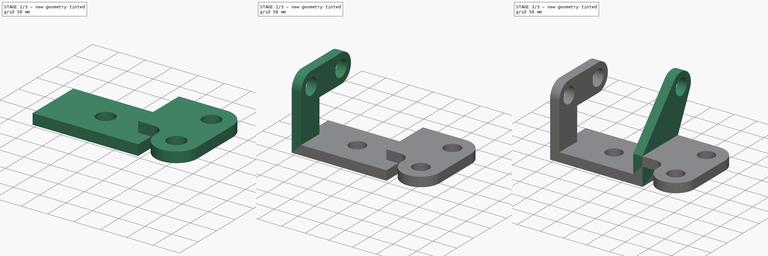
[diagram: build sequence overview — one tinted view per stage of 3, left to right]
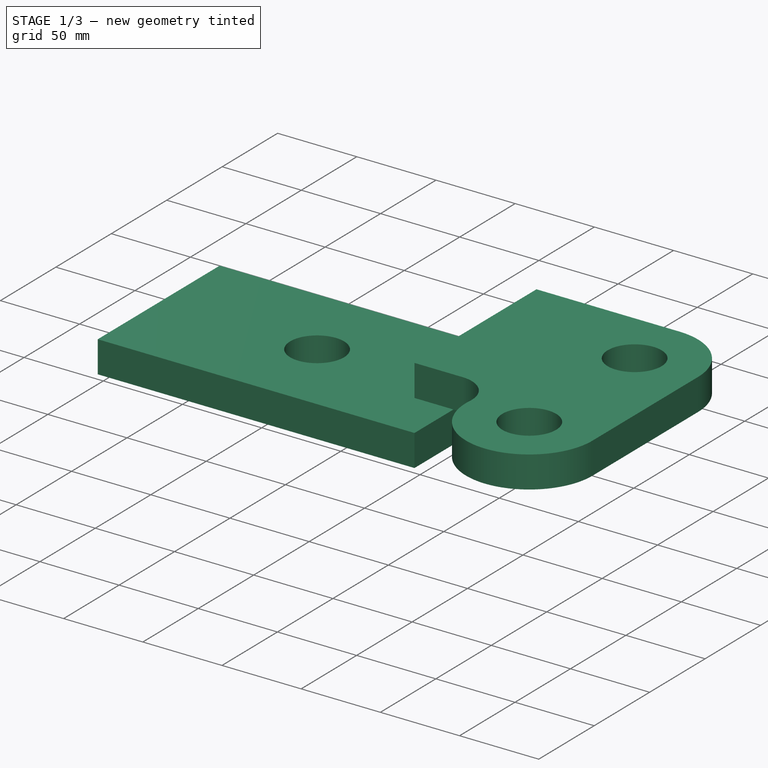
[diagram: stage 1 of 3 — iso view after this stage's code; geometry added in this stage tinted green]
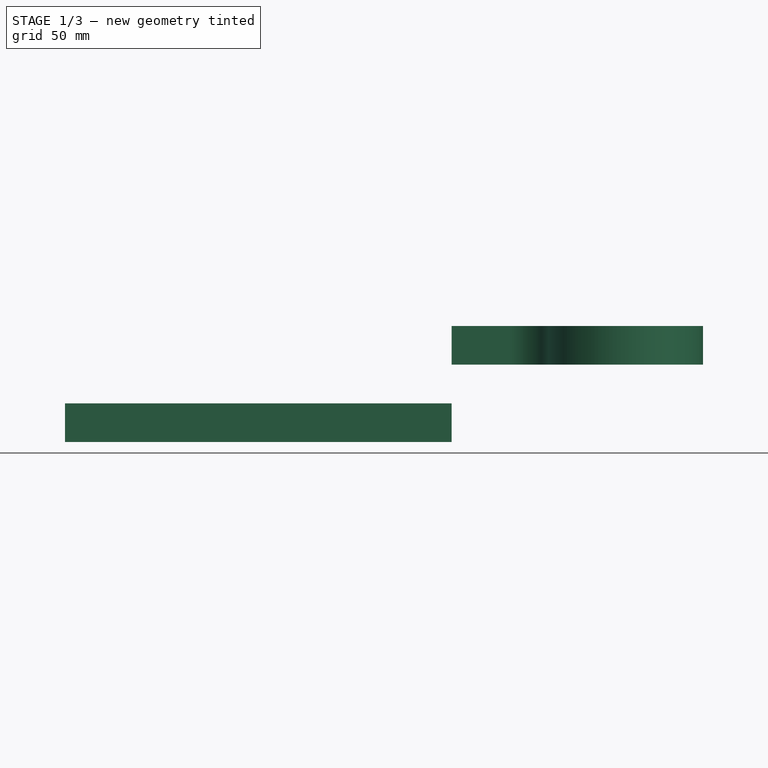
[diagram: stage 1 of 3 — front view after this stage's code; geometry added in this stage tinted green]
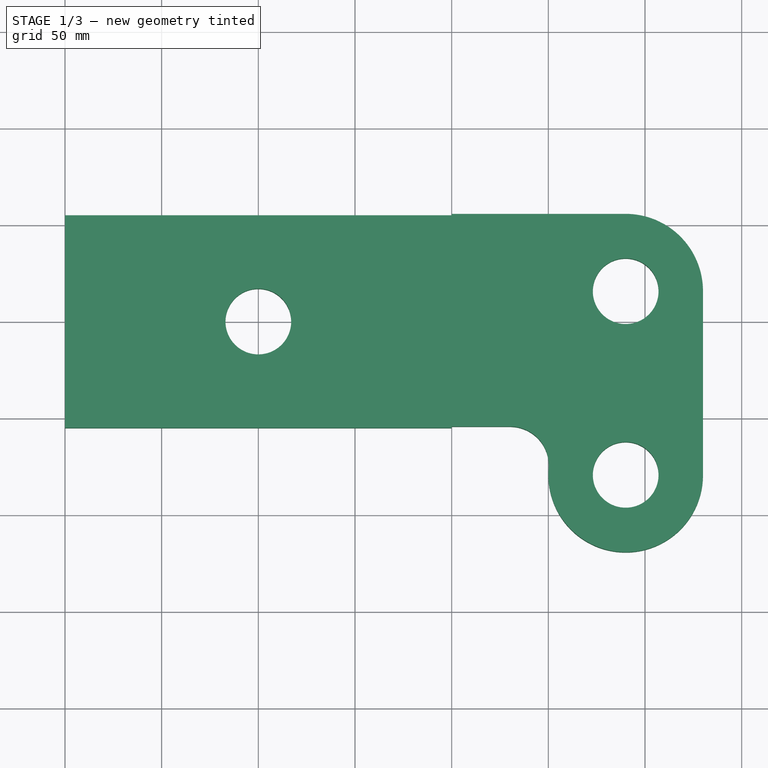
[diagram: stage 1 of 3 — top view after this stage's code; geometry added in this stage tinted green]
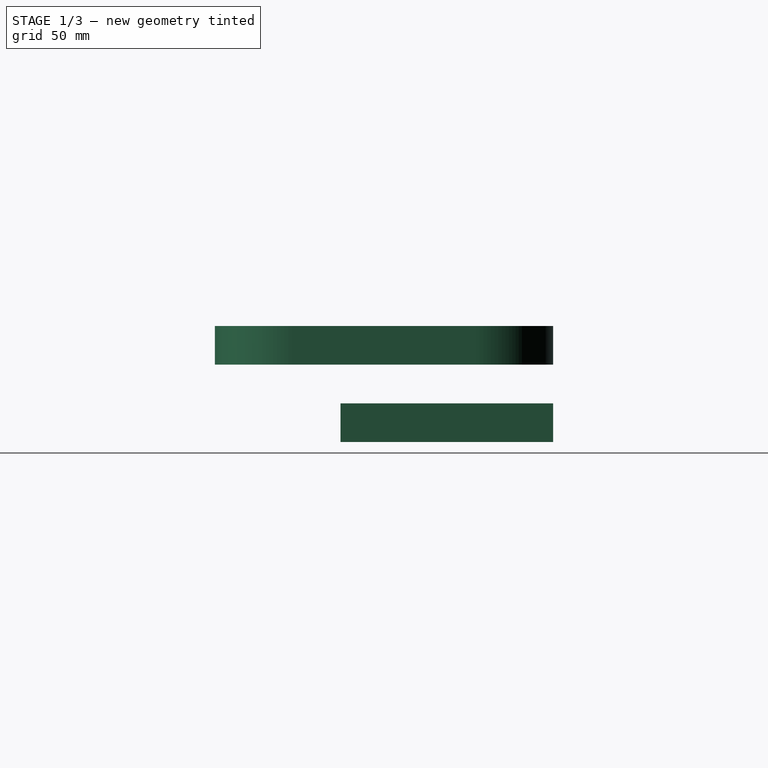
[diagram: stage 1 of 3 — right view after this stage's code; geometry added in this stage tinted green]
FCSTD DOCUMENT  (FreeCAD 0.16R)
Label: Ejer final 26
License: All rights reserved
LicenseURL: http://en.wikipedia.org/wiki/All_rights_reserved
objects: Sketcher::SketchObject×4, PartDesign::Pad×4, Part::MultiFuse×1, Part::Feature×1
note: 14 computed .brp shape members not serialized (recipe doc carries the construction recipe); baked Part::Feature solids carry a one-line shape summary decoded from their .brp

FEATURE [Sketcher::SketchObject] Sketch
  sketch-geometry (5):
    g0: LineSegment StartX=-100 StartY=55 StartZ=0 EndX=100 EndY=55 EndZ=0
    g1: LineSegment StartX=100 StartY=55 StartZ=0 EndX=100 EndY=-55 EndZ=0
    g2: LineSegment StartX=100 StartY=-55 StartZ=0 EndX=-100 EndY=-55 EndZ=0
    g3: LineSegment StartX=-100 StartY=-55 StartZ=0 EndX=-100 EndY=55 EndZ=0
    g4: Circle CenterX=0 CenterY=0 CenterZ=0 NormalX=0 NormalY=0 NormalZ=1 Radius=17
  constraints (14):
    c: Coincident(g0,g1)
    c: Coincident(g1,g2)
    c: Coincident(g2,g3)
    c: Coincident(g3,g0)
    c: Horizontal(g0)
    c: Horizontal(g2)
    c: Vertical(g1)
    c: Vertical(g3)
    c: DistanceX(g2,g2) = 200
    c: DistanceY(g1,g1) = 110
    c: Symmetric(g0,g1,g-1)
    c: Symmetric(g2,g1,g-2)
    c: Coincident(g4,g-1)
    c: Radius(g4) = 17
FEATURE [PartDesign::Pad] Pad
  Length = 20
  Length2 = 100
  Sketch = -> Sketch
  Type = 0
FEATURE [Sketcher::SketchObject] Sketch003
  Placement = pos=(0,0,40) rot=(0,0,1;0rad)
  sketch-geometry (9):
    g0: LineSegment StartX=100 StartY=55 StartZ=0 EndX=100 EndY=-55 EndZ=0
    g1: LineSegment StartX=100 StartY=-55 StartZ=0 EndX=130.209 EndY=-55 EndZ=0
    g2: LineSegment StartX=100 StartY=55 StartZ=0 EndX=190 EndY=55 EndZ=0
    g3: ArcOfCircle CenterX=190 CenterY=15 CenterZ=0 NormalX=0 NormalY=0 NormalZ=1 Radius=40 StartAngle=7.2625e-08 EndAngle=1.57079
    g4: LineSegment StartX=230 StartY=15 StartZ=0 EndX=230 EndY=-80 EndZ=0
    g5: Circle CenterX=190 CenterY=15 CenterZ=0 NormalX=0 NormalY=0 NormalZ=1 Radius=17
    g6: Circle CenterX=190 CenterY=-80 CenterZ=0 NormalX=0 NormalY=0 NormalZ=1 Radius=17
    g7: ArcOfCircle CenterX=190 CenterY=-80 CenterZ=0 NormalX=0 NormalY=0 NormalZ=1 Radius=40 StartAngle=3.05816 EndAngle=6.28319
    g8: ArcOfCircle CenterX=130.209 CenterY=-75 CenterZ=0 NormalX=0 NormalY=0 NormalZ=1 Radius=20 StartAngle=6.19976 EndAngle=7.85398
  constraints (29):
    c: Vertical(g0)
    c: Coincident(g0,g1)
    c: Horizontal(g1)
    c: Coincident(g0,g2)
    c: Horizontal(g2)
    c: DistanceX(g-1,g0) = 100
    c: DistanceY(g0,g-1) = 55
    c: DistanceY(g0,g3) = 70
    c: DistanceX(g0,g3) = 90
    c: Radius(g3) = 40
    c: Vertical(g4)
    c: Coincident(g5,g3)
    c: Radius(g6) = 17
    c: Equal(g6,g5)
    c: Coincident(g3,g4)
    c: Coincident(g3,g2)
    c: Tangent(g3,g2)
    c: Tangent(g4,g3)
    c: Coincident(g7,g6)
    c: Coincident(g7,g4)
    c: Tangent(g7,g4)
    c: DistanceY(g6,g3) = 95
    c: DistanceX(g0,g6) = 90
    c: PointOnObject(g8,g1)
    c: Radius(g8) = 20
    c: Tangent(g7,g8)
    c: Coincident(g1,g8)
    c: Coincident(g8,g7)
    c: Tangent(g8,g1)
FEATURE [PartDesign::Pad] Pad003
  Length = 20
  Length2 = 100
  Placement = pos=(0,0,40) rot=(0,0,1;0rad)
  Sketch = -> Sketch003
  Type = 0
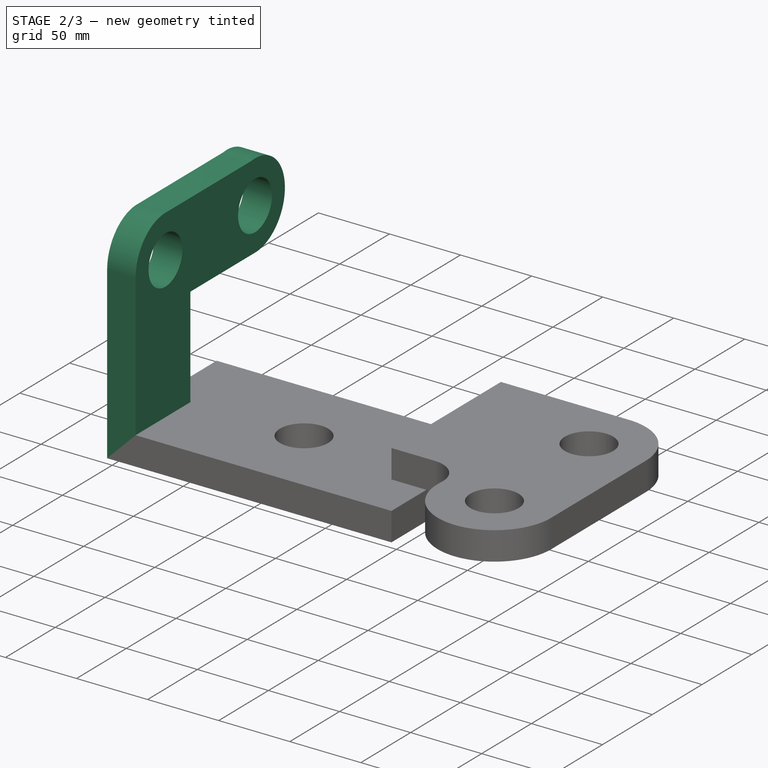
[diagram: stage 2 of 3 — iso view after this stage's code; geometry added in this stage tinted green]
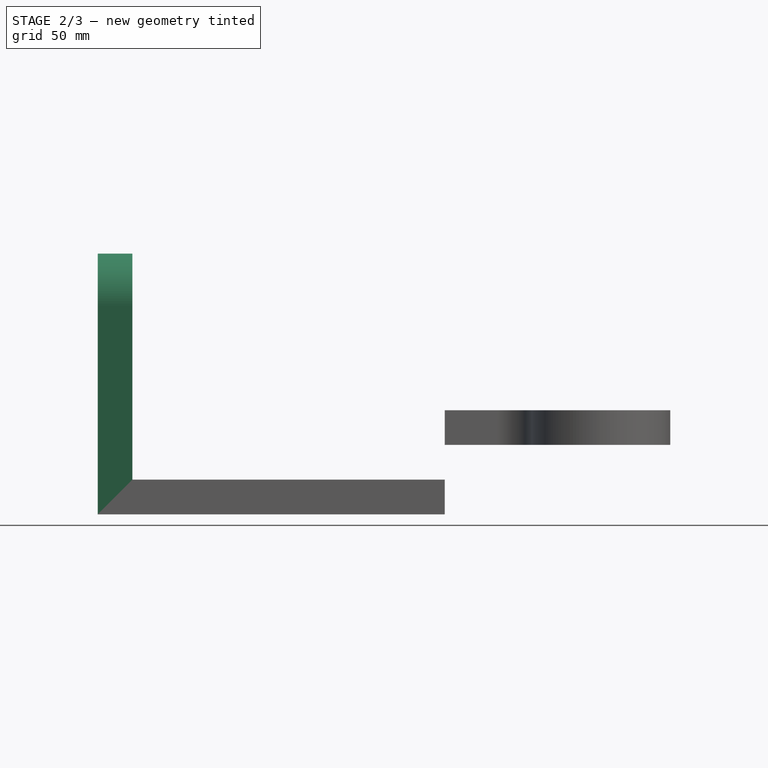
[diagram: stage 2 of 3 — front view after this stage's code; geometry added in this stage tinted green]
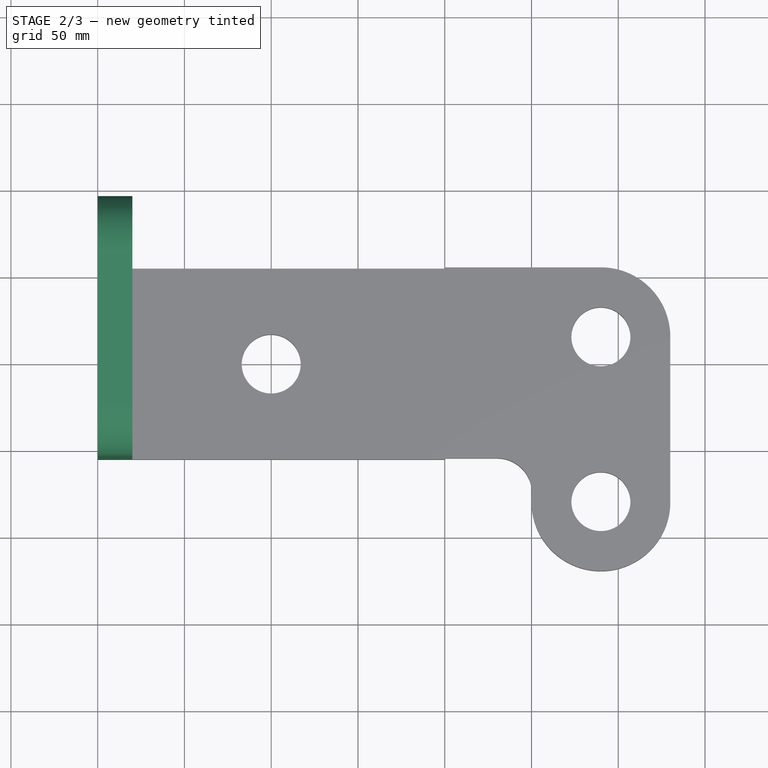
[diagram: stage 2 of 3 — top view after this stage's code; geometry added in this stage tinted green]
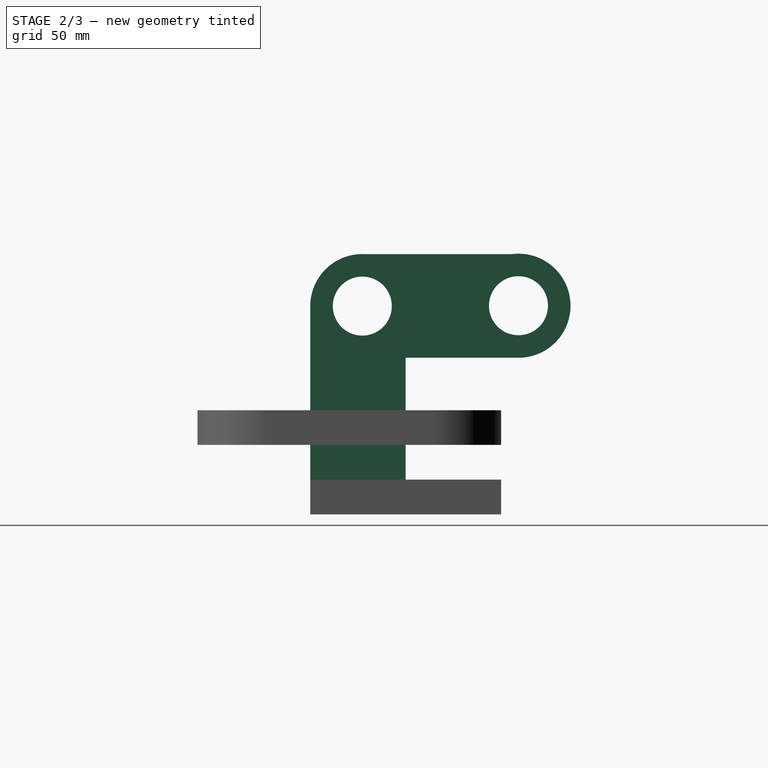
[diagram: stage 2 of 3 — right view after this stage's code; geometry added in this stage tinted green]
FEATURE [Sketcher::SketchObject] Sketch001
  ExternalGeometry = -> [Pad]
  Placement = pos=(-100,0,0) rot=(0.57735,-0.57735,-0.57735;2.0944rad)
  Support = -> Pad [Face4]
  sketch-geometry (9):
    g0: ArcOfCircle CenterX=25 CenterY=120 CenterZ=0 NormalX=0 NormalY=0 NormalZ=1 Radius=30 StartAngle=6.28318 EndAngle=7.89611
    g1: LineSegment StartX=55 StartY=0 StartZ=0 EndX=55 EndY=120 EndZ=0
    g2: ArcOfCircle CenterX=-65 CenterY=120.218 CenterZ=0 NormalX=0 NormalY=0 NormalZ=1 Radius=30 StartAngle=1.44291 EndAngle=4.67105
    g3: LineSegment StartX=-66.2397 StartY=90.244 StartZ=0 EndX=0 EndY=90.244 EndZ=0
    g4: LineSegment StartX=-61.1739 StartY=149.973 StartZ=0 EndX=23.7366 EndY=149.973 EndZ=0
    g5: LineSegment StartX=55 StartY=0 StartZ=0 EndX=0 EndY=0 EndZ=0
    g6: LineSegment StartX=0 StartY=0 StartZ=0 EndX=0 EndY=90.244 EndZ=0
    g7: Circle CenterX=25 CenterY=120 CenterZ=0 NormalX=0 NormalY=0 NormalZ=1 Radius=17
    g8: Circle CenterX=-65 CenterY=120.218 CenterZ=0 NormalX=0 NormalY=0 NormalZ=1 Radius=17
  constraints (23):
    c: Coincident(g1,g-3)
    c: Vertical(g1)
    c: DistanceY(g1,g1) = 120
    c: Radius(g0) = 30
    c: Radius(g2) = 30
    c: Horizontal(g3)
    c: Horizontal(g4)
    c: Coincident(g0,g4)
    c: Coincident(g2,g4)
    c: Coincident(g2,g3)
    c: DistanceX(g2,g0) = 90
    c: Tangent(g0,g1)
    c: Horizontal(g5)
    c: DistanceX(g5,g5) = 55
    c: Coincident(g5,g1)
    c: Coincident(g6,g-1)
    c: Vertical(g6)
    c: Coincident(g3,g6)
    c: Coincident(g1,g0)
    c: Coincident(g7,g0)
    c: Coincident(g8,g2)
    c: Radius(g8) = 17
    c: Equal(g8,g7)
FEATURE [PartDesign::Pad] Pad001
  Length = 20
  Length2 = 100
  Reversed = true
  Sketch = -> Sketch001
  Type = 0
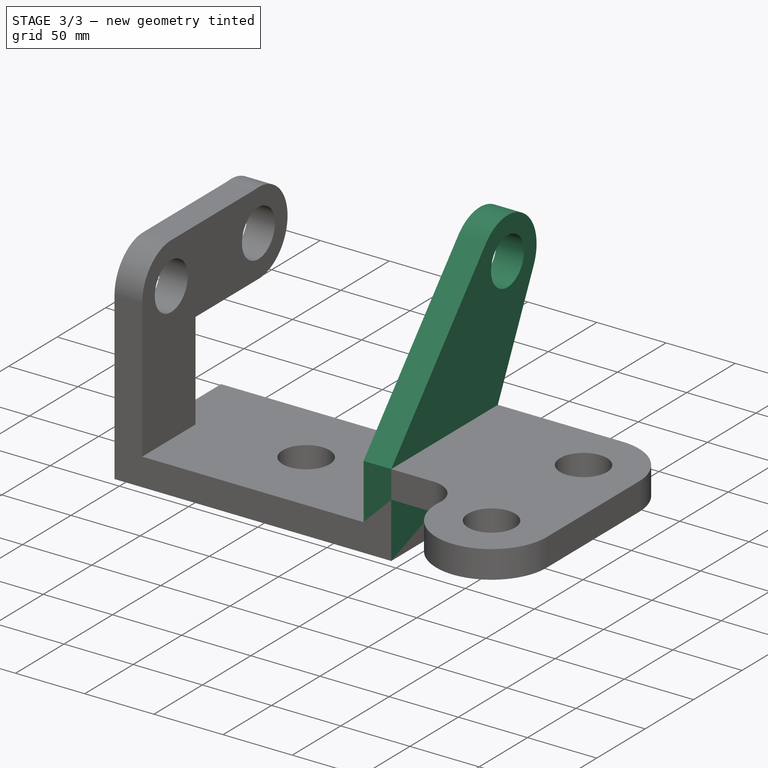
[diagram: stage 3 of 3 — iso view after this stage's code; geometry added in this stage tinted green]
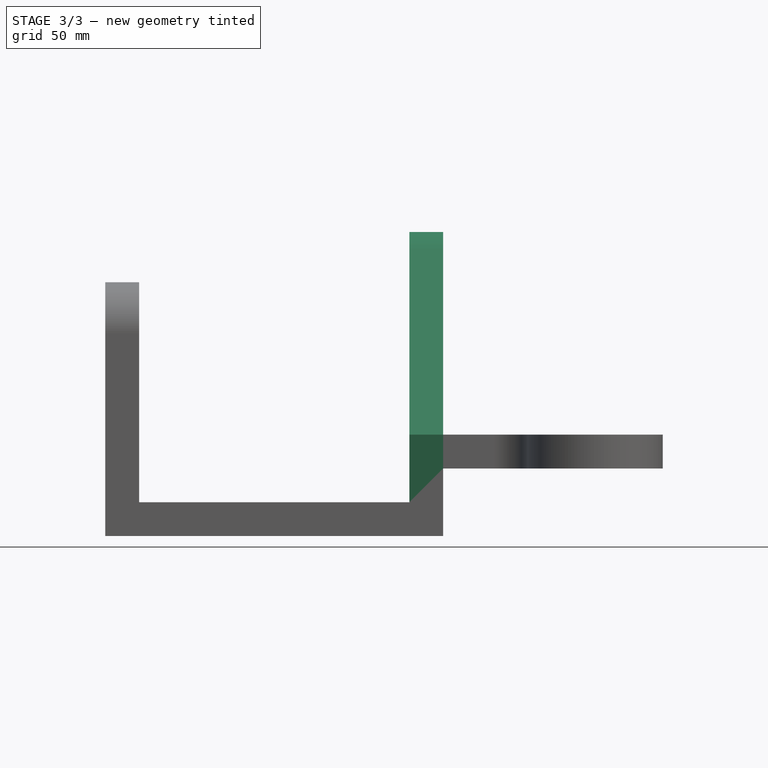
[diagram: stage 3 of 3 — front view after this stage's code; geometry added in this stage tinted green]
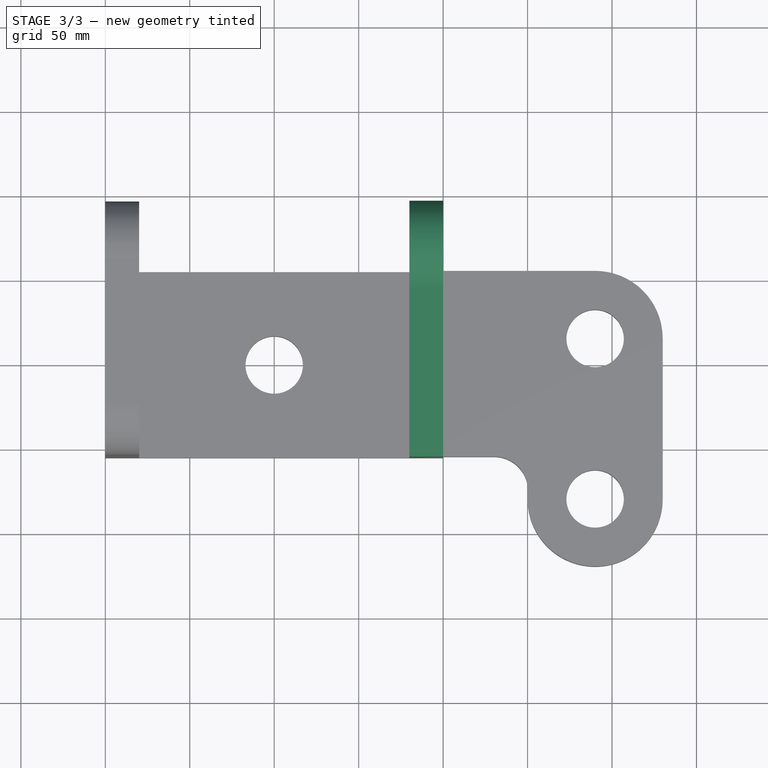
[diagram: stage 3 of 3 — top view after this stage's code; geometry added in this stage tinted green]
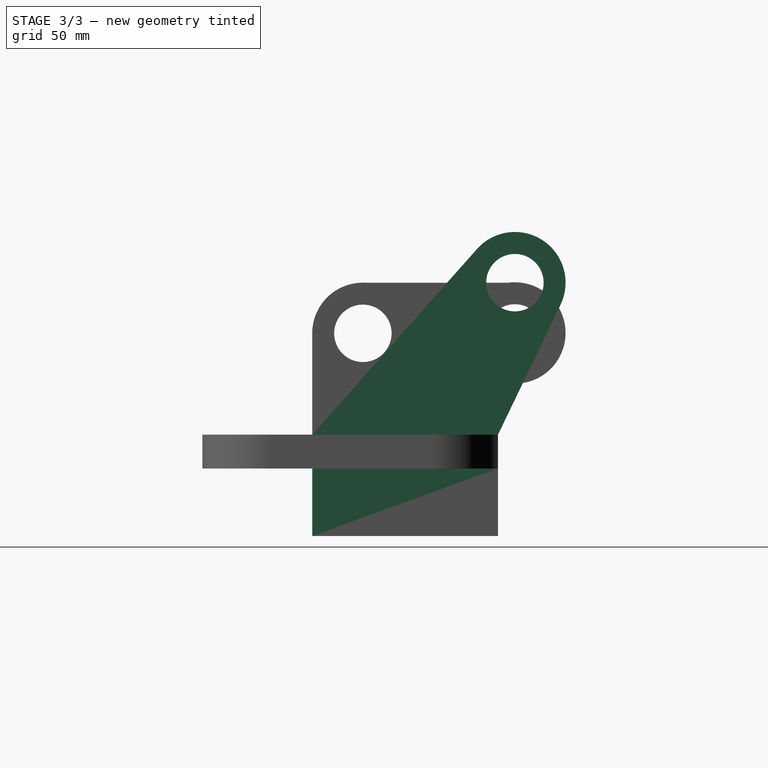
[diagram: stage 3 of 3 — right view after this stage's code; geometry added in this stage tinted green]
FEATURE [Sketcher::SketchObject] Sketch002
  ExternalGeometry = -> [Pad001]
  Placement = pos=(100,0,0) rot=(0.57735,0.57735,0.57735;2.0944rad)
  Support = -> Pad001 [Face2]
  sketch-geometry (9):
    g0: LineSegment StartX=-55 StartY=0 StartZ=0 EndX=-55 EndY=60 EndZ=0
    g1: LineSegment StartX=-55 StartY=60 StartZ=0 EndX=42.5637 EndY=169.915 EndZ=0
    g2: LineSegment StartX=55 StartY=60 StartZ=0 EndX=92.0352 EndY=136.996 EndZ=0
    g3: ArcOfCircle CenterX=65 CenterY=150 CenterZ=0 NormalX=0 NormalY=0 NormalZ=1 Radius=30 StartAngle=5.83485 EndAngle=8.69884
    g4: LineSegment [constr] StartX=55 StartY=150 StartZ=0 EndX=65 EndY=150 EndZ=0
    g5: Circle CenterX=65 CenterY=150 CenterZ=0 NormalX=0 NormalY=0 NormalZ=1 Radius=17
    g6: LineSegment StartX=-55 StartY=0 StartZ=0 EndX=0 EndY=0 EndZ=0
    g7: LineSegment StartX=0 StartY=0 StartZ=0 EndX=55 EndY=0 EndZ=0
    g8: LineSegment StartX=55 StartY=0 StartZ=0 EndX=55 EndY=60 EndZ=0
  constraints (25):
    c: Coincident(g-3,g0)
    c: Vertical(g0)
    c: Coincident(g0,g1)
    c: DistanceY(g0,g0) = 60
    c: DistanceY(g-1,g2) = 60
    c: Radius(g3) = 30
    c: DistanceY(g-4,g4) = 150
    c: Horizontal(g4)
    c: DistanceX(g4,g4) = 10
    c: Coincident(g3,g4)
    c: PointOnObject(g3,g1)
    c: Coincident(g3,g2)
    c: Coincident(g3,g1)
    c: DistanceX(g-4,g3) = 10
    c: Tangent(g2,g3)
    c: Tangent(g1,g3)
    c: Coincident(g5,g3)
    c: Radius(g5) = 17
    c: Coincident(g6,g0)
    c: Coincident(g6,g-1)
    c: Coincident(g7,g-1)
    c: Coincident(g7,g-4)
    c: Coincident(g8,g7)
    c: Coincident(g8,g2)
    c: Vertical(g8)
FEATURE [PartDesign::Pad] Pad002
  Length = 20
  Length2 = 100
  Reversed = true
  Sketch = -> Sketch002
  Type = 0
FEATURE [Part::MultiFuse] Fusion
  Shapes = -> [Pad003,Pad002]
FEATURE [Part::Feature] Fusion001
  shape: bbox 330 x 215 x 180 mm, 29 faces (baked)
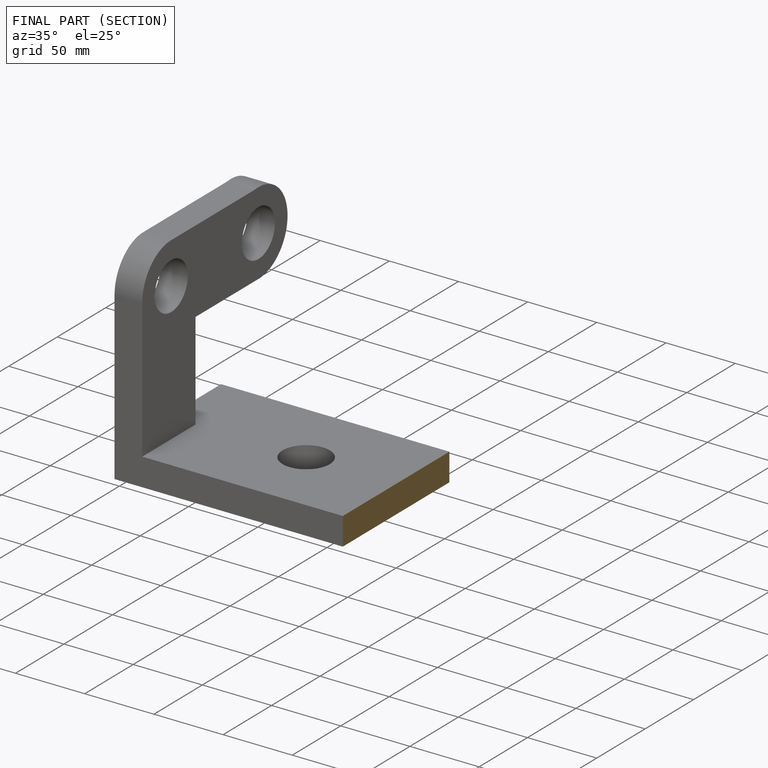
[diagram: finished part — half-section view (interior)]
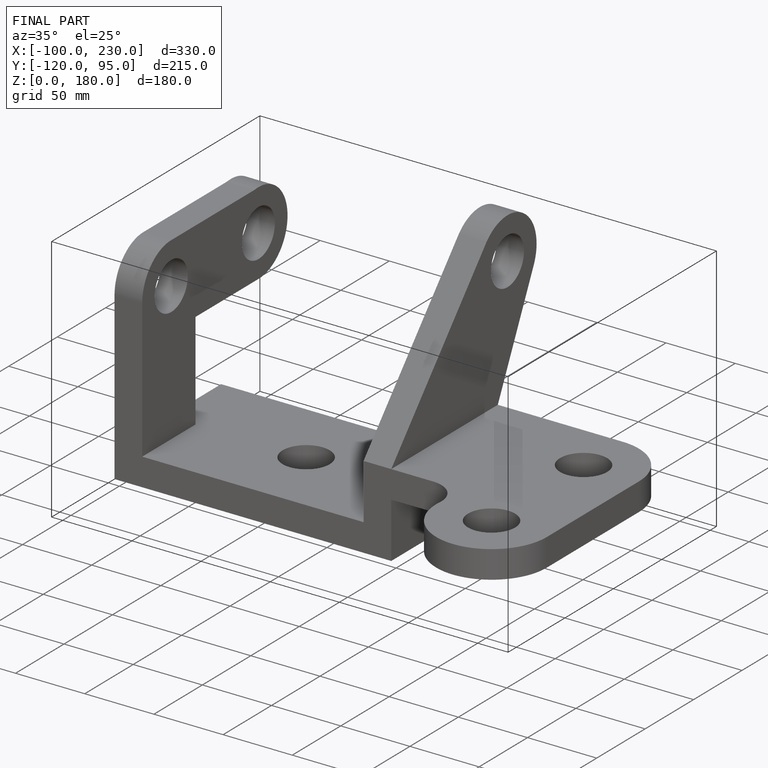
[diagram: finished part — iso view with bounding-box wireframe]
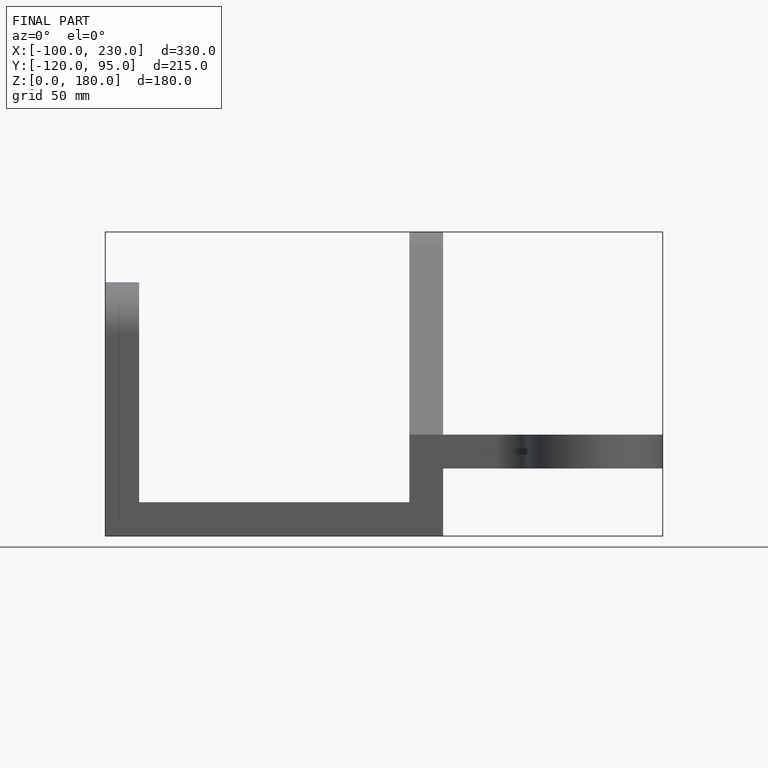
[diagram: finished part — front view with bounding-box wireframe]
